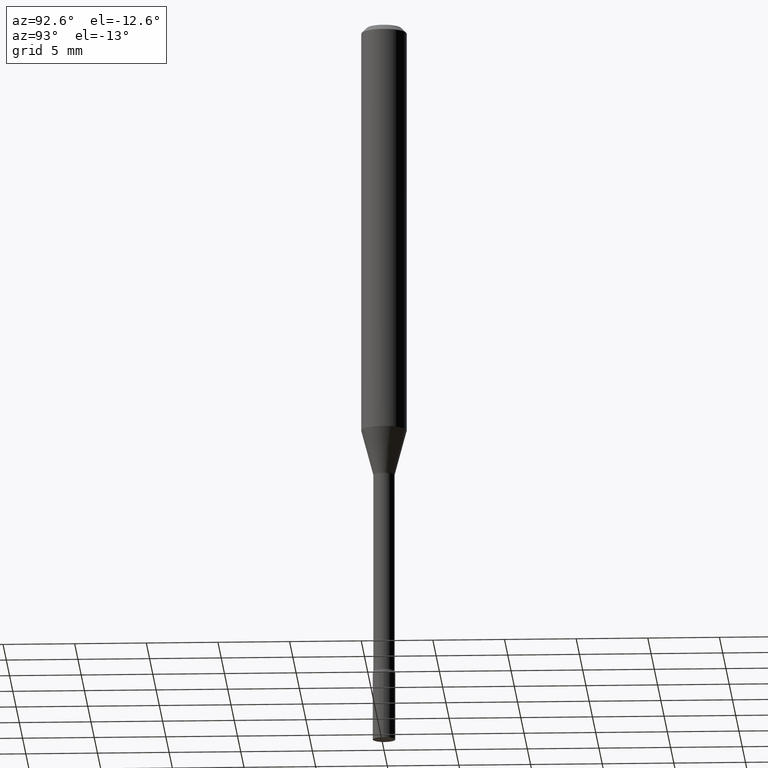
[diagram: clean part render]
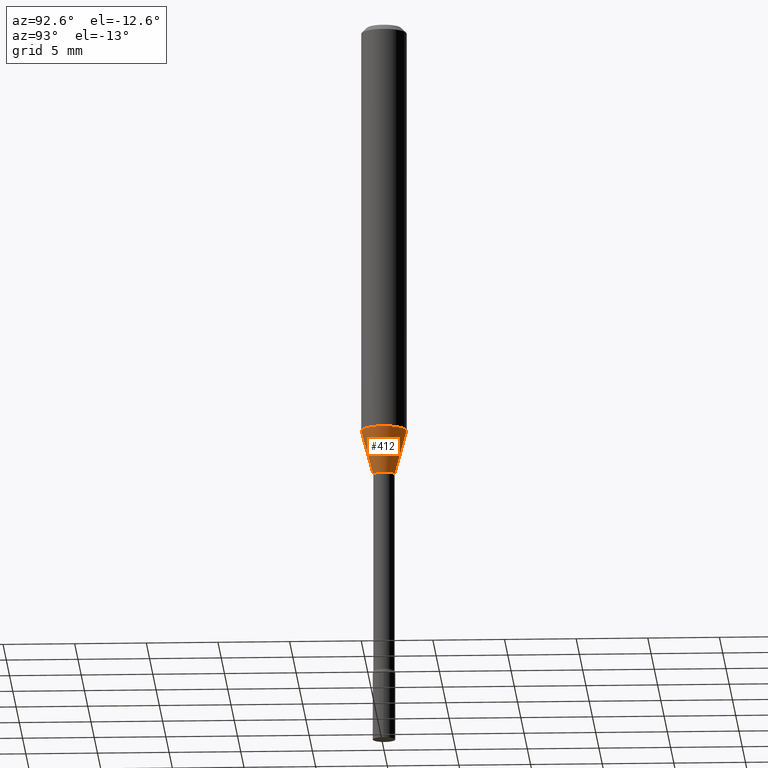
[diagram: same view with one face highlighted and labeled with its STEP entity id]
A machine part, auxiliary view. The second image highlights one B-rep face of the part: STEP entity #412.
In plain terms, the highlighted conical surface has half-angle 15 deg.
Its self-contained STEP definition (entity closure, byte-faithful):
#4 = DIRECTION ( 'NONE',  ( -6.982962677686265133E-15, -1.000000000000000000, 0.000000000000000000 ) ) ;
#23 = CONICAL_SURFACE ( 'NONE', #463, 0.02966111260566397720, 0.2617993877991501295 ) ;
#40 = CARTESIAN_POINT ( 'NONE',  ( 3.066843755278733880E-29, -4.378641051083626177E-15, -1.254092501787273051 ) ) ;
#45 = DIRECTION ( 'NONE',  ( -2.445468536737133447E-29, 3.491481724708021844E-15, 1.000000000000000000 ) ) ;
#51 = EDGE_CURVE ( 'NONE', #68, #71, #320, .T. ) ;
#56 = CARTESIAN_POINT ( 'NONE',  ( 3.274220454076449378E-16, 0.02966111260565960223, -1.254092501787273051 ) ) ;
#66 = EDGE_CURVE ( 'NONE', #71, #181, #481, .T. ) ;
#68 = VERTEX_POINT ( 'NONE', #478 ) ;
#71 = VERTEX_POINT ( 'NONE', #239 ) ;
#87 = LINE ( 'NONE', #447, #98 ) ;
#88 = DIRECTION ( 'NONE',  ( -1.807323732225328562E-15, -0.2588190451025179639, 0.9659258262890689783 ) ) ;
#98 = VECTOR ( 'NONE', #321, 39.37007874015747433 ) ;
#124 = DIRECTION ( 'NONE',  ( -2.445468536737133447E-29, 3.491481724708021844E-15, 1.000000000000000000 ) ) ;
#130 = DIRECTION ( 'NONE',  ( -6.982962677686265133E-15, -1.000000000000000000, 0.000000000000000000 ) ) ;
#136 = AXIS2_PLACEMENT_3D ( 'NONE', #40, #138, #130 ) ;
#138 = DIRECTION ( 'NONE',  ( -2.445468536737133447E-29, 3.491481724708021844E-15, 1.000000000000000000 ) ) ;
#145 = ORIENTED_EDGE ( 'NONE', *, *, #66, .F. ) ;
#172 = FACE_OUTER_BOUND ( 'NONE', #461, .T. ) ;
#181 = VERTEX_POINT ( 'NONE', #336 ) ;
#198 = CARTESIAN_POINT ( 'NONE',  ( -2.071224423039705106E-16, -0.02966111260566835564, -1.254092501787273051 ) ) ;
#239 = CARTESIAN_POINT ( 'NONE',  ( -4.364351673553641579E-16, -0.06250000000000398293, -1.131536105567577888 ) ) ;
#241 = EDGE_CURVE ( 'NONE', #68, #291, #307, .T. ) ;
#256 = ORIENTED_EDGE ( 'NONE', *, *, #51, .F. ) ;
#291 = VERTEX_POINT ( 'NONE', #56 ) ;
#307 = CIRCLE ( 'NONE', #136, 0.02966111260566397720 ) ;
#320 = LINE ( 'NONE', #198, #471 ) ;
#321 = DIRECTION ( 'NONE',  ( 1.839019923739599526E-15, 0.2588190451025248473, 0.9659258262890673130 ) ) ;
#328 = AXIS2_PLACEMENT_3D ( 'NONE', #487, #124, #517 ) ;
#336 = CARTESIAN_POINT ( 'NONE',  ( 4.440892098500899305E-16, 0.06249999999999602401, -1.131536105567578554 ) ) ;
#362 = ORIENTED_EDGE ( 'NONE', *, *, #372, .T. ) ;
#372 = EDGE_CURVE ( 'NONE', #291, #181, #87, .T. ) ;
#412 = ADVANCED_FACE ( 'NONE', ( #172 ), #23, .T. ) ;
#438 = CARTESIAN_POINT ( 'NONE',  ( 3.066843755278733880E-29, -4.378641051083626177E-15, -1.254092501787273051 ) ) ;
#447 = CARTESIAN_POINT ( 'NONE',  ( 2.107548809651993782E-16, 0.02966111260565959876, -1.254092501787273051 ) ) ;
#454 = ORIENTED_EDGE ( 'NONE', *, *, #241, .T. ) ;
#461 = EDGE_LOOP ( 'NONE', ( #454, #362, #145, #256 ) ) ;
#463 = AXIS2_PLACEMENT_3D ( 'NONE', #438, #45, #4 ) ;
#471 = VECTOR ( 'NONE', #88, 39.37007874015749564 ) ;
#478 = CARTESIAN_POINT ( 'NONE',  ( -2.071224423039705106E-16, -0.02966111260566835564, -1.254092501787273051 ) ) ;
#481 = CIRCLE ( 'NONE', #328, 0.06250000000000000000 ) ;
#487 = CARTESIAN_POINT ( 'NONE',  ( 2.767135944347580166E-29, -3.950737633436486769E-15, -1.131536105567578110 ) ) ;
#517 = DIRECTION ( 'NONE',  ( -6.982962677686265922E-15, -1.000000000000000000, 4.370956789862821150E-15 ) ) ;